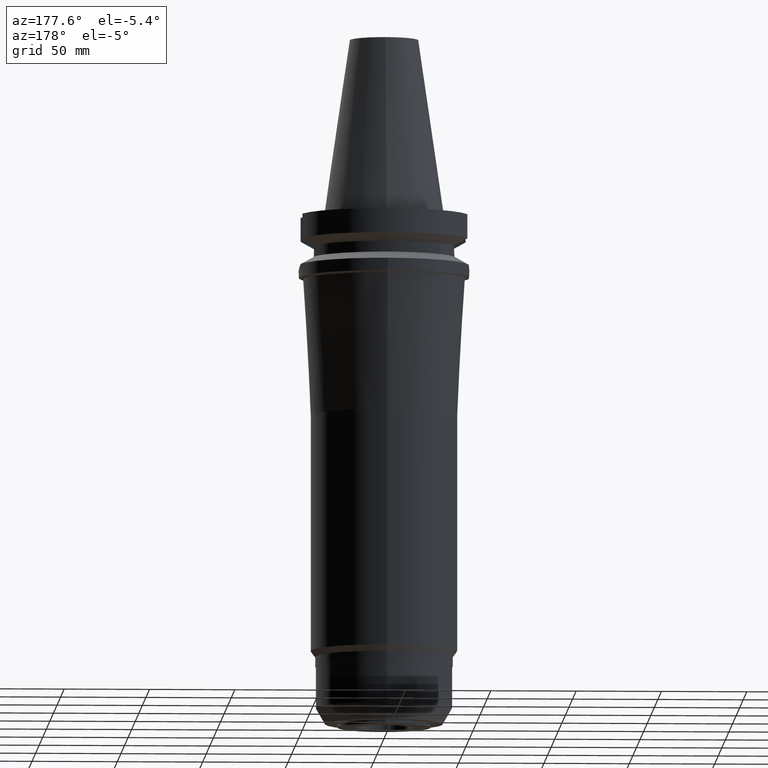
[diagram: clean part render]
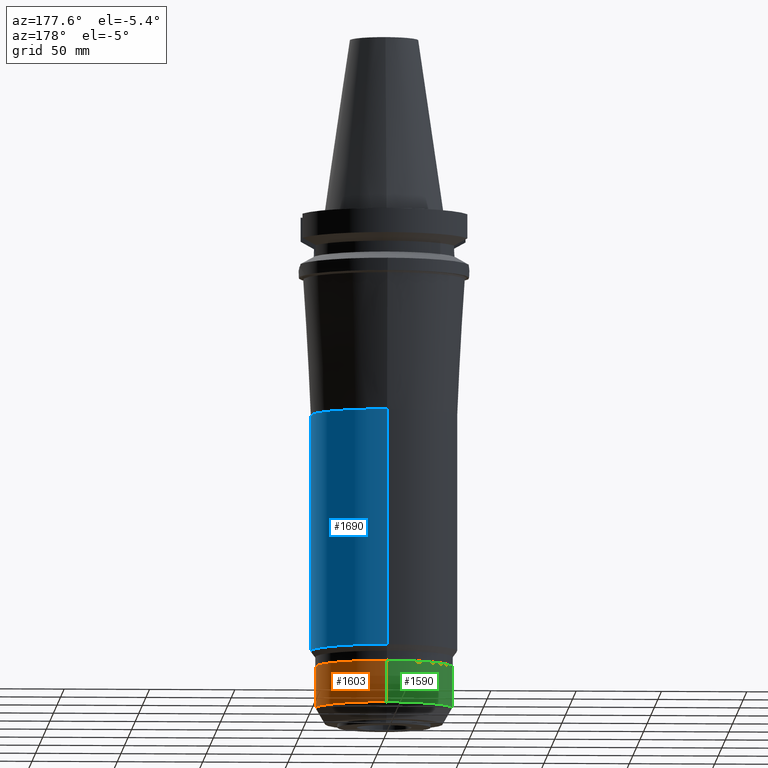
[diagram: same view with three faces highlighted in distinct colors, each labeled with its STEP entity id]
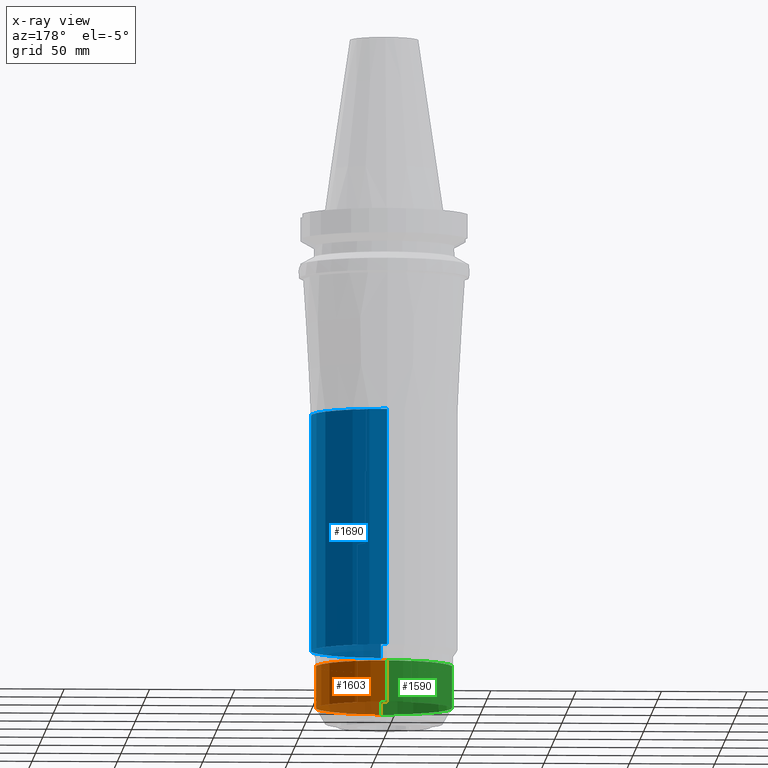
[diagram: x-ray of the same camera — body ghosted, the three highlighted faces saturated]
A machine part, auxiliary view with three faces highlighted in distinct colors.
The next image is the same camera in x-ray (body ghosted, the three faces saturated) — at least one of them is partly hidden behind the body in this view.
Their STEP definitions:

[orange] entity #1603 — the highlighted cylindrical surface (partial cylindrical patch) has radius 40 mm, axis along (0, 0, -1).
#285=CARTESIAN_POINT('',(0.E0,-2.396021462532E-14,-2.909E2));
#286=DIRECTION('',(0.E0,0.E0,1.E0));
#287=DIRECTION('',(0.E0,-1.E0,0.E0));
#288=AXIS2_PLACEMENT_3D('',#285,#286,#287);
#308=DIRECTION('',(0.E0,-1.169617672033E-14,-1.E0));
#309=VECTOR('',#308,2.43E1);
#310=CARTESIAN_POINT('',(0.E0,-4.E1,-2.666E2));
#311=LINE('',#310,#309);
#315=DIRECTION('',(0.E0,1.081896346631E-14,-1.E0));
#316=VECTOR('',#315,2.43E1);
#317=CARTESIAN_POINT('',(0.E0,4.E1,-2.666E2));
#318=LINE('',#317,#316);
#346=CARTESIAN_POINT('',(0.E0,2.718838358787E-14,-2.666E2));
#347=DIRECTION('',(0.E0,0.E0,-1.E0));
#348=DIRECTION('',(0.E0,1.E0,0.E0));
#349=AXIS2_PLACEMENT_3D('',#346,#347,#348);
#1173=CARTESIAN_POINT('',(0.E0,4.E1,-2.909E2));
#1174=VERTEX_POINT('',#1173);
#1175=CARTESIAN_POINT('',(0.E0,-4.E1,-2.909E2));
#1176=VERTEX_POINT('',#1175);
#1177=CARTESIAN_POINT('',(0.E0,4.E1,-2.666E2));
#1178=VERTEX_POINT('',#1177);
#1179=CARTESIAN_POINT('',(0.E0,-4.E1,-2.666E2));
#1180=VERTEX_POINT('',#1179);
#1591=CARTESIAN_POINT('',(0.E0,2.718838358787E-14,1.2201E2));
#1592=DIRECTION('',(0.E0,0.E0,-1.E0));
#1593=DIRECTION('',(0.E0,-1.E0,0.E0));
#1594=AXIS2_PLACEMENT_3D('',#1591,#1592,#1593);
#1595=CYLINDRICAL_SURFACE('',#1594,4.E1);
#1596=ORIENTED_EDGE('',*,*,#1581,.T.);
#1597=ORIENTED_EDGE('',*,*,#1558,.F.);
#1598=ORIENTED_EDGE('',*,*,#1585,.F.);
#1600=ORIENTED_EDGE('',*,*,#1599,.F.);
#1601=EDGE_LOOP('',(#1596,#1597,#1598,#1600));
#1602=FACE_OUTER_BOUND('',#1601,.F.);
#289=CIRCLE('',#288,4.E1);
#350=CIRCLE('',#349,4.E1);
#1558=EDGE_CURVE('',#1176,#1174,#289,.T.);
#1581=EDGE_CURVE('',#1178,#1174,#318,.T.);
#1585=EDGE_CURVE('',#1180,#1176,#311,.T.);
#1599=EDGE_CURVE('',#1178,#1180,#350,.T.);
#1603=ADVANCED_FACE('',(#1602),#1595,.T.);

[blue] entity #1690 — the highlighted cylindrical surface (partial cylindrical patch) has radius 43 mm, axis along (0, 0, -1).
#406=CARTESIAN_POINT('',(0.E0,-1.949127447667E-14,-2.574E2));
#407=DIRECTION('',(0.E0,0.E0,1.E0));
#408=DIRECTION('',(0.E0,-1.E0,0.E0));
#409=AXIS2_PLACEMENT_3D('',#406,#407,#408);
#414=DIRECTION('',(0.E0,-6.766584723496E-14,-1.E0));
#415=VECTOR('',#414,1.384E2);
#416=CARTESIAN_POINT('',(0.E0,4.3E1,-1.19E2));
#417=LINE('',#416,#415);
#421=DIRECTION('',(0.E0,6.746048806278E-14,-1.E0));
#422=VECTOR('',#421,1.384E2);
#423=CARTESIAN_POINT('',(0.E0,-4.3E1,-1.19E2));
#424=LINE('',#423,#422);
#450=CARTESIAN_POINT('',(0.E0,0.E0,-1.19E2));
#451=DIRECTION('',(0.E0,0.E0,-1.E0));
#452=DIRECTION('',(0.E0,1.E0,0.E0));
#453=AXIS2_PLACEMENT_3D('',#450,#451,#452);
#1189=CARTESIAN_POINT('',(0.E0,4.299999999999E1,-2.574E2));
#1190=VERTEX_POINT('',#1189);
#1191=CARTESIAN_POINT('',(0.E0,-4.299999999998E1,-2.574E2));
#1192=VERTEX_POINT('',#1191);
#1193=CARTESIAN_POINT('',(0.E0,4.3E1,-1.19E2));
#1194=VERTEX_POINT('',#1193);
#1195=CARTESIAN_POINT('',(0.E0,-4.3E1,-1.19E2));
#1196=VERTEX_POINT('',#1195);
#1676=CARTESIAN_POINT('',(0.E0,2.718838358787E-14,1.2201E2));
#1677=DIRECTION('',(0.E0,0.E0,-1.E0));
#1678=DIRECTION('',(0.E0,-1.E0,0.E0));
#1679=AXIS2_PLACEMENT_3D('',#1676,#1677,#1678);
#1680=CYLINDRICAL_SURFACE('',#1679,4.3E1);
#1682=ORIENTED_EDGE('',*,*,#1681,.T.);
#1683=ORIENTED_EDGE('',*,*,#1671,.F.);
#1685=ORIENTED_EDGE('',*,*,#1684,.F.);
#1687=ORIENTED_EDGE('',*,*,#1686,.F.);
#1688=EDGE_LOOP('',(#1682,#1683,#1685,#1687));
#1689=FACE_OUTER_BOUND('',#1688,.F.);
#410=CIRCLE('',#409,4.299999999998E1);
#454=CIRCLE('',#453,4.3E1);
#1671=EDGE_CURVE('',#1192,#1190,#410,.T.);
#1681=EDGE_CURVE('',#1194,#1190,#417,.T.);
#1684=EDGE_CURVE('',#1196,#1192,#424,.T.);
#1686=EDGE_CURVE('',#1194,#1196,#454,.T.);
#1690=ADVANCED_FACE('',(#1689),#1680,.T.);

[green] entity #1590 — the highlighted cylindrical surface (partial cylindrical patch) has radius 40 mm, axis along (0, 0, -1).
#293=CARTESIAN_POINT('',(0.E0,-2.396021462532E-14,-2.909E2));
#294=DIRECTION('',(0.E0,0.E0,1.E0));
#295=DIRECTION('',(0.E0,1.E0,0.E0));
#296=AXIS2_PLACEMENT_3D('',#293,#294,#295);
#308=DIRECTION('',(0.E0,-1.169617672033E-14,-1.E0));
#309=VECTOR('',#308,2.43E1);
#310=CARTESIAN_POINT('',(0.E0,-4.E1,-2.666E2));
#311=LINE('',#310,#309);
#315=DIRECTION('',(0.E0,1.081896346631E-14,-1.E0));
#316=VECTOR('',#315,2.43E1);
#317=CARTESIAN_POINT('',(0.E0,4.E1,-2.666E2));
#318=LINE('',#317,#316);
#338=CARTESIAN_POINT('',(0.E0,2.718838358787E-14,-2.666E2));
#339=DIRECTION('',(0.E0,0.E0,-1.E0));
#340=DIRECTION('',(0.E0,-1.E0,0.E0));
#341=AXIS2_PLACEMENT_3D('',#338,#339,#340);
#1173=CARTESIAN_POINT('',(0.E0,4.E1,-2.909E2));
#1174=VERTEX_POINT('',#1173);
#1175=CARTESIAN_POINT('',(0.E0,-4.E1,-2.909E2));
#1176=VERTEX_POINT('',#1175);
#1177=CARTESIAN_POINT('',(0.E0,4.E1,-2.666E2));
#1178=VERTEX_POINT('',#1177);
#1179=CARTESIAN_POINT('',(0.E0,-4.E1,-2.666E2));
#1180=VERTEX_POINT('',#1179);
#1576=CARTESIAN_POINT('',(0.E0,2.718838358787E-14,1.2201E2));
#1577=DIRECTION('',(0.E0,0.E0,-1.E0));
#1578=DIRECTION('',(0.E0,-1.E0,0.E0));
#1579=AXIS2_PLACEMENT_3D('',#1576,#1577,#1578);
#1580=CYLINDRICAL_SURFACE('',#1579,4.E1);
#1582=ORIENTED_EDGE('',*,*,#1581,.F.);
#1584=ORIENTED_EDGE('',*,*,#1583,.F.);
#1586=ORIENTED_EDGE('',*,*,#1585,.T.);
#1587=ORIENTED_EDGE('',*,*,#1569,.F.);
#1588=EDGE_LOOP('',(#1582,#1584,#1586,#1587));
#1589=FACE_OUTER_BOUND('',#1588,.F.);
#297=CIRCLE('',#296,4.E1);
#342=CIRCLE('',#341,4.E1);
#1569=EDGE_CURVE('',#1174,#1176,#297,.T.);
#1581=EDGE_CURVE('',#1178,#1174,#318,.T.);
#1583=EDGE_CURVE('',#1180,#1178,#342,.T.);
#1585=EDGE_CURVE('',#1180,#1176,#311,.T.);
#1590=ADVANCED_FACE('',(#1589),#1580,.T.);